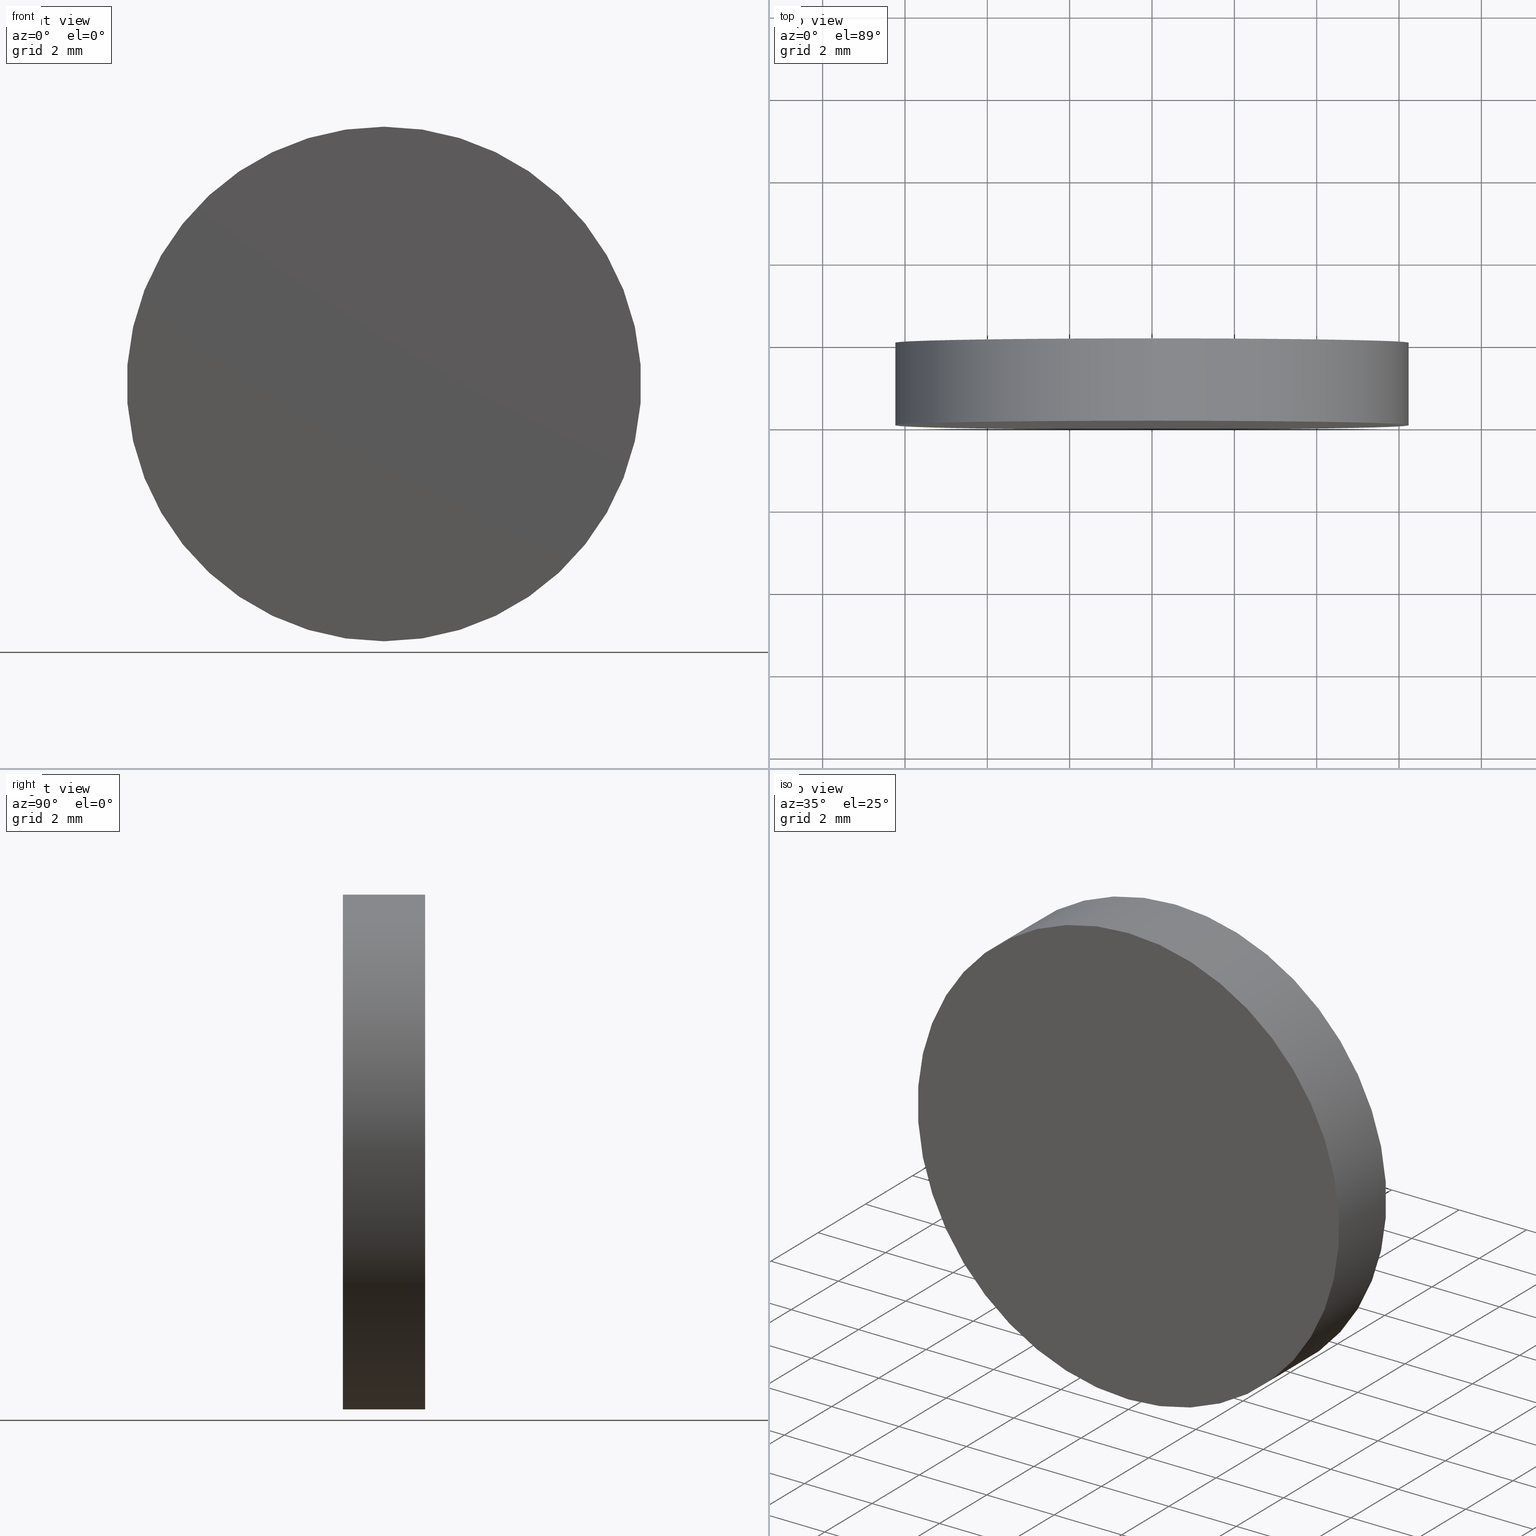
[diagram: canonical four-view strip — front | top / right | iso, engineering-drawing reading convention]
A machine part, canonical four-view strip (front | top / right | iso — engineering-drawing reading convention). The complete STEP part file that produces these views, byte-faithful:
ISO-10303-21;
HEADER;
FILE_DESCRIPTION (( 'STEP AP214' ),
    '1' );
FILE_NAME ('208500.STEP',
    '2019-07-24T05:53:16',
    ( 'user' ),
    ( '΢���й�' ),
    'SwSTEP 2.0',
    'SolidWorks 2016',
    '' );
FILE_SCHEMA (( 'AUTOMOTIVE_DESIGN' ));
ENDSEC;

DATA;
#1 = EDGE_CURVE ( 'NONE', #124, #19, #103, .T. ) ;
#2 = CIRCLE ( 'NONE', #125, 6.250000000000000000 ) ;
#3 = FACE_OUTER_BOUND ( 'NONE', #39, .T. ) ;
#4 = STYLED_ITEM ( 'NONE', ( #48 ), #83 ) ;
#5 = DIRECTION ( 'NONE',  ( 0.0000000000000000000, -0.0000000000000000000, 1.000000000000000000 ) ) ;
#6 = SURFACE_STYLE_FILL_AREA ( #117 ) ;
#7 =( NAMED_UNIT ( * ) SI_UNIT ( $, .STERADIAN. ) SOLID_ANGLE_UNIT ( ) );
#8 = CARTESIAN_POINT ( 'NONE',  ( 0.0000000000000000000, 2.000000000000000000, 0.0000000000000000000 ) ) ;
#9 = EDGE_LOOP ( 'NONE', ( #133, #99, #15, #74 ) ) ;
#10 = STYLED_ITEM ( 'NONE', ( #86 ), #30 ) ;
#11 = ADVANCED_FACE ( 'NONE', ( #47 ), #120, .T. ) ;
#12 = CIRCLE ( 'NONE', #64, 6.250000000000000000 ) ;
#13 = EDGE_LOOP ( 'NONE', ( #69, #108, #139, #71 ) ) ;
#14 =( GEOMETRIC_REPRESENTATION_CONTEXT ( 3 ) GLOBAL_UNCERTAINTY_ASSIGNED_CONTEXT ( ( #113 ) ) GLOBAL_UNIT_ASSIGNED_CONTEXT ( ( #45, #126, #56 ) ) REPRESENTATION_CONTEXT ( 'NONE', 'WORKASPACE' ) );
#15 = ORIENTED_EDGE ( 'NONE', *, *, #16, .T. ) ;
#16 = EDGE_CURVE ( 'NONE', #19, #102, #2, .T. ) ;
#17 = CARTESIAN_POINT ( 'NONE',  ( 0.0000000000000000000, 0.0000000000000000000, 0.0000000000000000000 ) ) ;
#18 = SURFACE_SIDE_STYLE ('',( #31 ) ) ;
#19 = VERTEX_POINT ( 'NONE', #95 ) ;
#20 = DIRECTION ( 'NONE',  ( 0.0000000000000000000, 0.0000000000000000000, 1.000000000000000000 ) ) ;
#21 = PRESENTATION_LAYER_ASSIGNMENT (  '', '', ( #10 ) ) ;
#22 = CARTESIAN_POINT ( 'NONE',  ( 0.0000000000000000000, 0.0000000000000000000, 0.0000000000000000000 ) ) ;
#23 = PRODUCT_RELATED_PRODUCT_CATEGORY ( 'part', '', ( #85 ) ) ;
#24 = DIRECTION ( 'NONE',  ( 1.000000000000000000, 0.0000000000000000000, 0.0000000000000000000 ) ) ;
#25 = CARTESIAN_POINT ( 'NONE',  ( 0.0000000000000000000, 0.0000000000000000000, 0.0000000000000000000 ) ) ;
#26 = CARTESIAN_POINT ( 'NONE',  ( 7.654042494670957600E-016, 2.000000000000000000, 6.250000000000000000 ) ) ;
#27 = EDGE_CURVE ( 'NONE', #82, #124, #128, .T. ) ;
#28 = PRODUCT_DEFINITION_SHAPE ( 'NONE', 'NONE',  #29 ) ;
#29 = PRODUCT_DEFINITION ( 'δ֪', '', #51, #92 ) ;
#30 = MANIFOLD_SOLID_BREP ( '͹̨-����1', #94 ) ;
#31 = SURFACE_STYLE_FILL_AREA ( #36 ) ;
#32 =( GEOMETRIC_REPRESENTATION_CONTEXT ( 3 ) GLOBAL_UNCERTAINTY_ASSIGNED_CONTEXT ( ( #55 ) ) GLOBAL_UNIT_ASSIGNED_CONTEXT ( ( #135, #67, #7 ) ) REPRESENTATION_CONTEXT ( 'NONE', 'WORKASPACE' ) );
#33 = FACE_OUTER_BOUND ( 'NONE', #61, .T. ) ;
#34 = DIRECTION ( 'NONE',  ( 0.0000000000000000000, 0.0000000000000000000, 1.000000000000000000 ) ) ;
#35 = FILL_AREA_STYLE_COLOUR ( '', #41 ) ;
#36 = FILL_AREA_STYLE ('',( #53 ) ) ;
#37 = APPLICATION_CONTEXT ( 'automotive_design' ) ;
#38 = CARTESIAN_POINT ( 'NONE',  ( 0.0000000000000000000, 2.000000000000000000, -6.250000000000000000 ) ) ;
#39 = EDGE_LOOP ( 'NONE', ( #66, #130 ) ) ;
#40 = CARTESIAN_POINT ( 'NONE',  ( 0.0000000000000000000, 0.0000000000000000000, -6.250000000000000000 ) ) ;
#41 = COLOUR_RGB ( '',1.000000000000000000, 1.000000000000000000, 1.000000000000000000 ) ;
#42 = DIRECTION ( 'NONE',  ( -0.0000000000000000000, -1.000000000000000000, -0.0000000000000000000 ) ) ;
#43 = DIRECTION ( 'NONE',  ( 0.0000000000000000000, 1.000000000000000000, 0.0000000000000000000 ) ) ;
#44 = ORIENTED_EDGE ( 'NONE', *, *, #16, .F. ) ;
#45 =( LENGTH_UNIT ( ) NAMED_UNIT ( * ) SI_UNIT ( .MILLI., .METRE. ) );
#46 = ORIENTED_EDGE ( 'NONE', *, *, #131, .F. ) ;
#47 = FACE_OUTER_BOUND ( 'NONE', #9, .T. ) ;
#48 = PRESENTATION_STYLE_ASSIGNMENT (( #58 ) ) ;
#49 = DIRECTION ( 'NONE',  ( 0.0000000000000000000, -0.0000000000000000000, 1.000000000000000000 ) ) ;
#50 = SURFACE_SIDE_STYLE ('',( #6 ) ) ;
#51 = PRODUCT_DEFINITION_FORMATION_WITH_SPECIFIED_SOURCE ( '�κ�', '', #85, .NOT_KNOWN. ) ;
#52 = APPLICATION_PROTOCOL_DEFINITION ( 'draft international standard', 'automotive_design', 1998, #37 ) ;
#53 = FILL_AREA_STYLE_COLOUR ( '', #76 ) ;
#54 = ADVANCED_FACE ( 'NONE', ( #3 ), #73, .T. ) ;
#55 = UNCERTAINTY_MEASURE_WITH_UNIT (LENGTH_MEASURE( 1.000000000000000100E-005 ), #135, 'distance_accuracy_value', 'NONE');
#56 =( NAMED_UNIT ( * ) SI_UNIT ( $, .STERADIAN. ) SOLID_ANGLE_UNIT ( ) );
#57 = AXIS2_PLACEMENT_3D ( 'NONE', #8, #43, #122 ) ;
#58 = SURFACE_STYLE_USAGE ( .BOTH. , #50 ) ;
#59 = DIRECTION ( 'NONE',  ( 0.0000000000000000000, 1.000000000000000000, 0.0000000000000000000 ) ) ;
#60 = CARTESIAN_POINT ( 'NONE',  ( 7.654042494670957600E-016, 2.000000000000000000, 6.250000000000000000 ) ) ;
#61 = EDGE_LOOP ( 'NONE', ( #46, #44 ) ) ;
#62 = VECTOR ( 'NONE', #129, 1000.000000000000000 ) ;
#63 = CARTESIAN_POINT ( 'NONE',  ( 0.0000000000000000000, 2.000000000000000000, 0.0000000000000000000 ) ) ;
#64 = AXIS2_PLACEMENT_3D ( 'NONE', #84, #109, #118 ) ;
#65 = FACE_OUTER_BOUND ( 'NONE', #13, .T. ) ;
#66 = ORIENTED_EDGE ( 'NONE', *, *, #27, .T. ) ;
#67 =( NAMED_UNIT ( * ) PLANE_ANGLE_UNIT ( ) SI_UNIT ( $, .RADIAN. ) );
#68 =( NAMED_UNIT ( * ) PLANE_ANGLE_UNIT ( ) SI_UNIT ( $, .RADIAN. ) );
#69 = ORIENTED_EDGE ( 'NONE', *, *, #1, .F. ) ;
#70 = CARTESIAN_POINT ( 'NONE',  ( 0.0000000000000000000, 2.000000000000000000, -6.250000000000000000 ) ) ;
#71 = ORIENTED_EDGE ( 'NONE', *, *, #131, .T. ) ;
#72 =( GEOMETRIC_REPRESENTATION_CONTEXT ( 3 ) GLOBAL_UNCERTAINTY_ASSIGNED_CONTEXT ( ( #75 ) ) GLOBAL_UNIT_ASSIGNED_CONTEXT ( ( #136, #68, #79 ) ) REPRESENTATION_CONTEXT ( 'NONE', 'WORKASPACE' ) );
#73 = PLANE ( 'NONE',  #96 ) ;
#74 = ORIENTED_EDGE ( 'NONE', *, *, #112, .F. ) ;
#75 = UNCERTAINTY_MEASURE_WITH_UNIT (LENGTH_MEASURE( 1.000000000000000100E-005 ), #136, 'distance_accuracy_value', 'NONE');
#76 = COLOUR_RGB ( '',1.000000000000000000, 1.000000000000000000, 1.000000000000000000 ) ;
#77 = AXIS2_PLACEMENT_3D ( 'NONE', #17, #115, #49 ) ;
#78 = PLANE ( 'NONE',  #77 ) ;
#79 =( NAMED_UNIT ( * ) SI_UNIT ( $, .STERADIAN. ) SOLID_ANGLE_UNIT ( ) );
#80 = DIRECTION ( 'NONE',  ( -0.0000000000000000000, -1.000000000000000000, -0.0000000000000000000 ) ) ;
#81 = AXIS2_PLACEMENT_3D ( 'NONE', #107, #80, #119 ) ;
#82 = VERTEX_POINT ( 'NONE', #38 ) ;
#83 = ADVANCED_BREP_SHAPE_REPRESENTATION ( '208500', ( #30, #101 ), #32 ) ;
#84 = CARTESIAN_POINT ( 'NONE',  ( 0.0000000000000000000, 2.000000000000000000, 0.0000000000000000000 ) ) ;
#85 = PRODUCT ( '208500', '208500', '', ( #106 ) ) ;
#86 = PRESENTATION_STYLE_ASSIGNMENT (( #110 ) ) ;
#87 = PRESENTATION_LAYER_ASSIGNMENT (  '', '', ( #4 ) ) ;
#88 = LINE ( 'NONE', #70, #62 ) ;
#89 = CARTESIAN_POINT ( 'NONE',  ( 0.0000000000000000000, 0.0000000000000000000, 0.0000000000000000000 ) ) ;
#90 = APPLICATION_PROTOCOL_DEFINITION ( 'draft international standard', 'automotive_design', 1998, #105 ) ;
#91 = DIRECTION ( 'NONE',  ( 0.0000000000000000000, 0.0000000000000000000, 1.000000000000000000 ) ) ;
#92 = PRODUCT_DEFINITION_CONTEXT ( 'detailed design', #37, 'design' ) ;
#93 = DIRECTION ( 'NONE',  ( 0.0000000000000000000, 1.000000000000000000, 0.0000000000000000000 ) ) ;
#94 = CLOSED_SHELL ( 'NONE', ( #11, #98, #54, #140 ) ) ;
#95 = CARTESIAN_POINT ( 'NONE',  ( 7.654042494670957600E-016, 0.0000000000000000000, 6.250000000000000000 ) ) ;
#96 = AXIS2_PLACEMENT_3D ( 'NONE', #63, #59, #5 ) ;
#97 = CIRCLE ( 'NONE', #121, 6.250000000000000000 ) ;
#98 = ADVANCED_FACE ( 'NONE', ( #65 ), #127, .T. ) ;
#99 = ORIENTED_EDGE ( 'NONE', *, *, #1, .T. ) ;
#100 = EDGE_CURVE ( 'NONE', #124, #82, #12, .T. ) ;
#101 = AXIS2_PLACEMENT_3D ( 'NONE', #89, #91, #24 ) ;
#102 = VERTEX_POINT ( 'NONE', #40 ) ;
#103 = LINE ( 'NONE', #26, #111 ) ;
#104 = DIRECTION ( 'NONE',  ( 0.0000000000000000000, 1.000000000000000000, 0.0000000000000000000 ) ) ;
#105 = APPLICATION_CONTEXT ( 'automotive_design' ) ;
#106 = PRODUCT_CONTEXT ( 'NONE', #105, 'mechanical' ) ;
#107 = CARTESIAN_POINT ( 'NONE',  ( 0.0000000000000000000, 2.000000000000000000, 0.0000000000000000000 ) ) ;
#108 = ORIENTED_EDGE ( 'NONE', *, *, #27, .F. ) ;
#109 = DIRECTION ( 'NONE',  ( 0.0000000000000000000, 1.000000000000000000, 0.0000000000000000000 ) ) ;
#110 = SURFACE_STYLE_USAGE ( .BOTH. , #18 ) ;
#111 = VECTOR ( 'NONE', #116, 1000.000000000000000 ) ;
#112 = EDGE_CURVE ( 'NONE', #82, #102, #88, .T. ) ;
#113 = UNCERTAINTY_MEASURE_WITH_UNIT (LENGTH_MEASURE( 1.000000000000000100E-005 ), #45, 'distance_accuracy_value', 'NONE');
#114 = MECHANICAL_DESIGN_GEOMETRIC_PRESENTATION_REPRESENTATION (  '', ( #10 ), #14 ) ;
#115 = DIRECTION ( 'NONE',  ( 0.0000000000000000000, 1.000000000000000000, 0.0000000000000000000 ) ) ;
#116 = DIRECTION ( 'NONE',  ( -0.0000000000000000000, -1.000000000000000000, -0.0000000000000000000 ) ) ;
#117 = FILL_AREA_STYLE ('',( #35 ) ) ;
#118 = DIRECTION ( 'NONE',  ( 0.0000000000000000000, 0.0000000000000000000, 1.000000000000000000 ) ) ;
#119 = DIRECTION ( 'NONE',  ( 0.0000000000000000000, 0.0000000000000000000, -1.000000000000000000 ) ) ;
#120 = CYLINDRICAL_SURFACE ( 'NONE', #134, 6.250000000000000000 ) ;
#121 = AXIS2_PLACEMENT_3D ( 'NONE', #22, #104, #34 ) ;
#122 = DIRECTION ( 'NONE',  ( 0.0000000000000000000, 0.0000000000000000000, 1.000000000000000000 ) ) ;
#123 = SHAPE_DEFINITION_REPRESENTATION ( #28, #83 ) ;
#124 = VERTEX_POINT ( 'NONE', #60 ) ;
#125 = AXIS2_PLACEMENT_3D ( 'NONE', #25, #93, #20 ) ;
#126 =( NAMED_UNIT ( * ) PLANE_ANGLE_UNIT ( ) SI_UNIT ( $, .RADIAN. ) );
#127 = CYLINDRICAL_SURFACE ( 'NONE', #81, 6.250000000000000000 ) ;
#128 = CIRCLE ( 'NONE', #57, 6.250000000000000000 ) ;
#129 = DIRECTION ( 'NONE',  ( -0.0000000000000000000, -1.000000000000000000, -0.0000000000000000000 ) ) ;
#130 = ORIENTED_EDGE ( 'NONE', *, *, #100, .T. ) ;
#131 = EDGE_CURVE ( 'NONE', #102, #19, #97, .T. ) ;
#132 = DIRECTION ( 'NONE',  ( 0.0000000000000000000, 0.0000000000000000000, -1.000000000000000000 ) ) ;
#133 = ORIENTED_EDGE ( 'NONE', *, *, #100, .F. ) ;
#134 = AXIS2_PLACEMENT_3D ( 'NONE', #138, #42, #132 ) ;
#135 =( LENGTH_UNIT ( ) NAMED_UNIT ( * ) SI_UNIT ( .MILLI., .METRE. ) );
#136 =( LENGTH_UNIT ( ) NAMED_UNIT ( * ) SI_UNIT ( .MILLI., .METRE. ) );
#137 = MECHANICAL_DESIGN_GEOMETRIC_PRESENTATION_REPRESENTATION (  '', ( #4 ), #72 ) ;
#138 = CARTESIAN_POINT ( 'NONE',  ( 0.0000000000000000000, 2.000000000000000000, 0.0000000000000000000 ) ) ;
#139 = ORIENTED_EDGE ( 'NONE', *, *, #112, .T. ) ;
#140 = ADVANCED_FACE ( 'NONE', ( #33 ), #78, .F. ) ;
ENDSEC;
END-ISO-10303-21;
